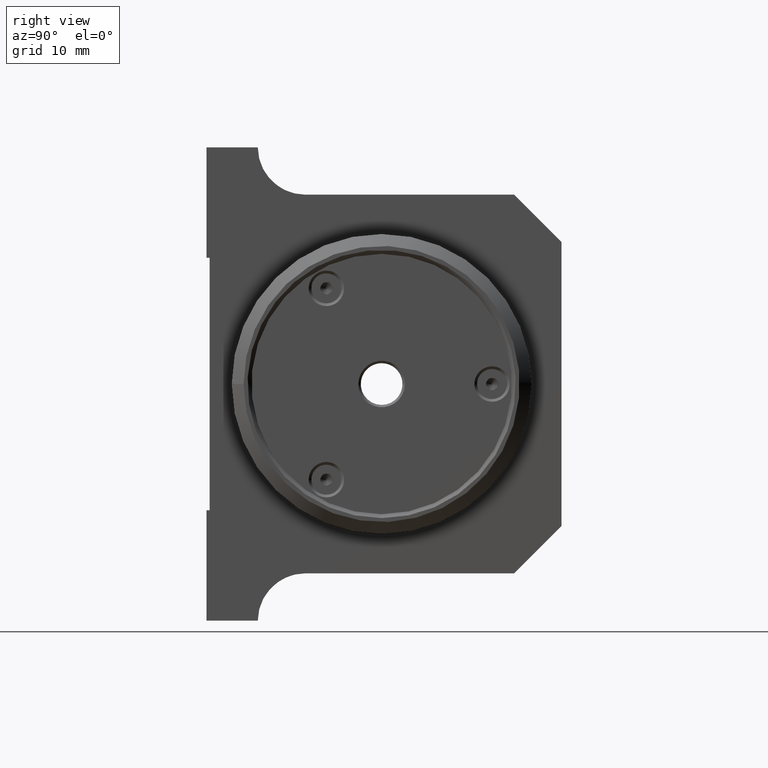
[diagram: clean part render]
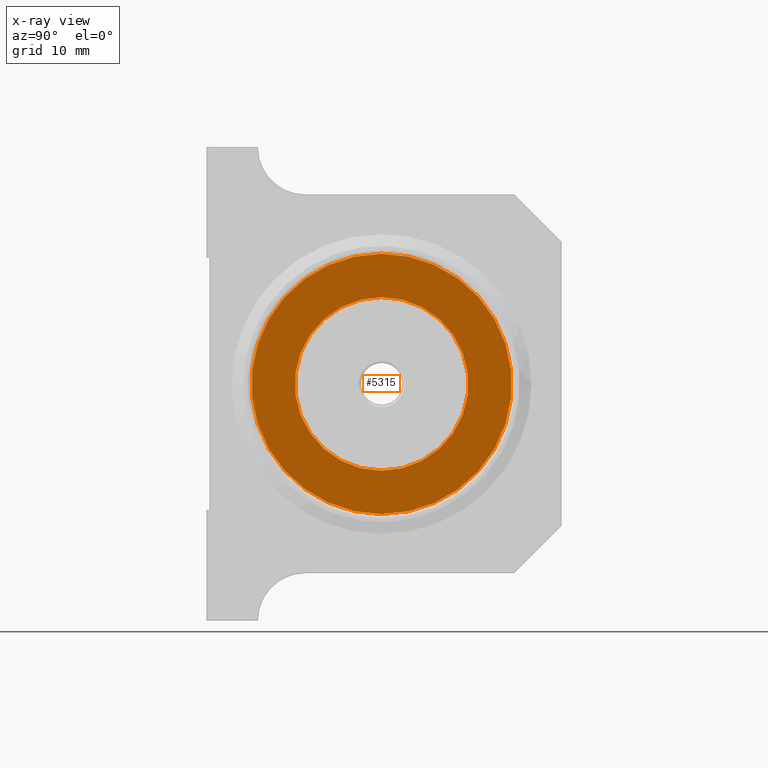
[diagram: x-ray — body ghosted, one internal face saturated and labeled with its STEP entity id]
A machine part, right view, then the same camera in x-ray: the body is ghosted and one INTERNAL B-rep face — a face not visible from any outside direction — is saturated and labeled: STEP entity #5315.
In plain terms, the highlighted planar face has unit normal (-1, 0, 0).
Its self-contained STEP definition (entity closure, byte-faithful):
#94 = CARTESIAN_POINT ( 'NONE',  ( 20.75000000000000000, 0.000000000000000000, 0.000000000000000000 ) ) ;
#602 = FACE_OUTER_BOUND ( 'NONE', #4309, .T. ) ;
#838 = VERTEX_POINT ( 'NONE', #2876 ) ;
#870 = AXIS2_PLACEMENT_3D ( 'NONE', #4194, #6248, #1656 ) ;
#957 = EDGE_CURVE ( 'NONE', #5360, #5360, #5687, .T. ) ;
#1600 = FACE_BOUND ( 'NONE', #2629, .T. ) ;
#1656 = DIRECTION ( 'NONE',  ( 0.000000000000000000, 0.000000000000000000, 1.000000000000000000 ) ) ;
#1742 = AXIS2_PLACEMENT_3D ( 'NONE', #3932, #4908, #2406 ) ;
#1876 = EDGE_CURVE ( 'NONE', #838, #838, #5588, .T. ) ;
#2138 = DIRECTION ( 'NONE',  ( -1.000000000000000000, 0.000000000000000000, 0.000000000000000000 ) ) ;
#2406 = DIRECTION ( 'NONE',  ( 0.000000000000000000, 0.000000000000000000, 1.000000000000000000 ) ) ;
#2559 = ORIENTED_EDGE ( 'NONE', *, *, #957, .T. ) ;
#2629 = EDGE_LOOP ( 'NONE', ( #5034 ) ) ;
#2744 = DIRECTION ( 'NONE',  ( 0.000000000000000000, 0.000000000000000000, 1.000000000000000000 ) ) ;
#2876 = CARTESIAN_POINT ( 'NONE',  ( 20.75000000000000000, 0.000000000000000000, 11.00000000000000000 ) ) ;
#3334 = AXIS2_PLACEMENT_3D ( 'NONE', #94, #2138, #2744 ) ;
#3932 = CARTESIAN_POINT ( 'NONE',  ( 20.75000000000000000, 0.000000000000000000, 0.000000000000000000 ) ) ;
#4194 = CARTESIAN_POINT ( 'NONE',  ( 20.75000000000000000, 0.000000000000000000, 0.000000000000000000 ) ) ;
#4309 = EDGE_LOOP ( 'NONE', ( #2559 ) ) ;
#4908 = DIRECTION ( 'NONE',  ( 1.000000000000000000, -0.000000000000000000, -0.000000000000000000 ) ) ;
#4919 = CARTESIAN_POINT ( 'NONE',  ( 20.75000000000000000, 0.000000000000000000, 16.50000000000000000 ) ) ;
#5034 = ORIENTED_EDGE ( 'NONE', *, *, #1876, .T. ) ;
#5315 = ADVANCED_FACE ( 'NONE', ( #1600, #602 ), #5693, .T. ) ;
#5360 = VERTEX_POINT ( 'NONE', #4919 ) ;
#5588 = CIRCLE ( 'NONE', #1742, 11.00000000000000000 ) ;
#5687 = CIRCLE ( 'NONE', #870, 16.50000000000000000 ) ;
#5693 = PLANE ( 'NONE',  #3334 ) ;
#6248 = DIRECTION ( 'NONE',  ( -1.000000000000000000, 0.000000000000000000, 0.000000000000000000 ) ) ;